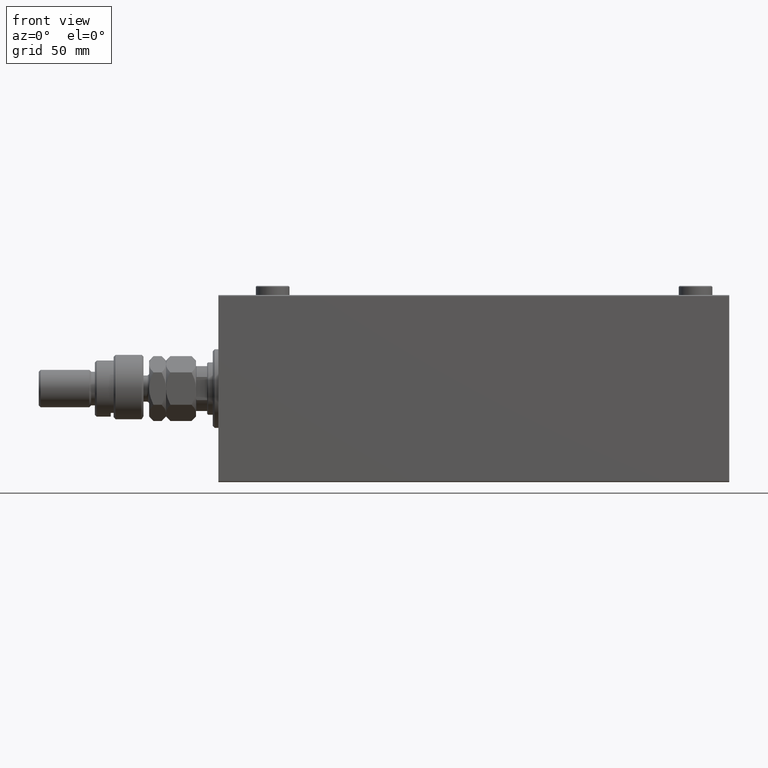
[diagram: clean part render]
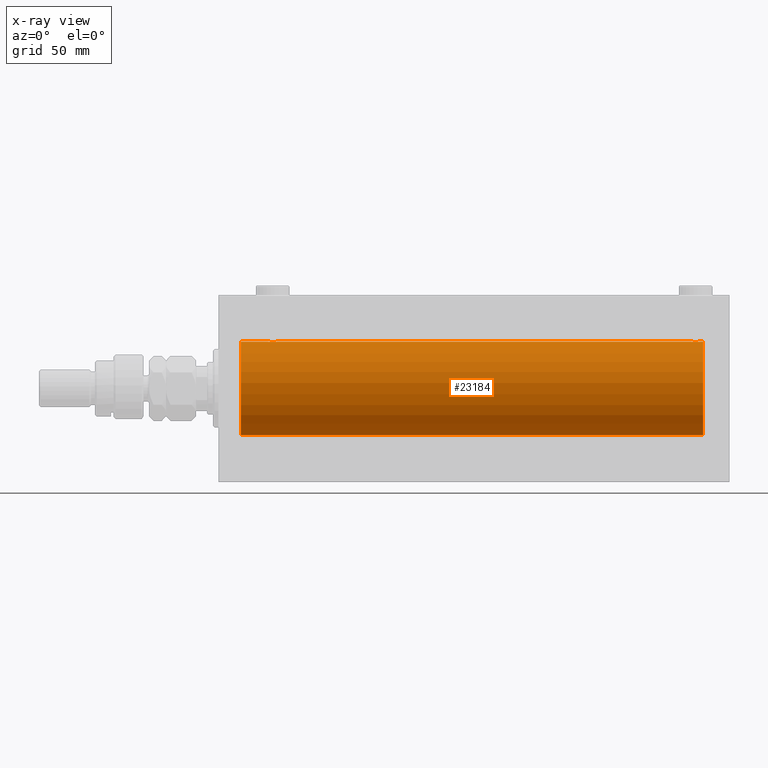
[diagram: x-ray — body ghosted, one internal face saturated and labeled with its STEP entity id]
A machine part, front view, then the same camera in x-ray: the body is ghosted and one INTERNAL B-rep face — a face not visible from any outside direction — is saturated and labeled: STEP entity #23184.
In plain terms, the highlighted cylindrical surface (partial cylindrical patch) has radius 25 mm, axis along (-1, -0, -0).
Its self-contained STEP definition (entity closure, byte-faithful):
#212 = CARTESIAN_POINT ( 'NONE',  ( 29.80435660916301899, -2.372734907014182326, 24.88722742718433878 ) ) ;
#597 = CARTESIAN_POINT ( 'NONE',  ( 252.7523974898045367, -1.106703319666894281, 24.97594585958023927 ) ) ;
#639 = CARTESIAN_POINT ( 'NONE',  ( 27.01461966282905180, -1.528152964861308138, -24.95362559291378801 ) ) ;
#1129 = CARTESIAN_POINT ( 'NONE',  ( 31.50000000000000000, 3.061616978460191625E-15, -25.00000000000000000 ) ) ;
#1507 = CARTESIAN_POINT ( 'NONE',  ( 259.0000000000000000, 3.061616997868383043E-15, -25.00000000000000000 ) ) ;
#1682 = CARTESIAN_POINT ( 'NONE',  ( 257.2476025101955202, -1.106703319666894947, -24.97594585958023217 ) ) ;
#1932 = CARTESIAN_POINT ( 'NONE',  ( 256.6538333614934118, -1.881857718844739624, -24.92933960374833902 ) ) ;
#2102 = CARTESIAN_POINT ( 'NONE',  ( 259.0000000000000000, 0.000000000000000000, 25.00000000000000000 ) ) ;
#2234 = VERTEX_POINT ( 'NONE', #37451 ) ;
#2618 = AXIS2_PLACEMENT_3D ( 'NONE', #45878, #12021, #26720 ) ;
#2656 = CARTESIAN_POINT ( 'NONE',  ( 257.3721596940860650, -0.8058335233485539595, -24.98746277938382931 ) ) ;
#2975 = VERTEX_POINT ( 'NONE', #33287 ) ;
#3764 = EDGE_LOOP ( 'NONE', ( #48429, #22702, #17120, #22298, #34511, #37191, #25600, #38653, #46615, #11689, #17526, #14984 ) ) ;
#3902 = CARTESIAN_POINT ( 'NONE',  ( 28.83293504821939379, -2.499872792855087233, 24.87469871246083031 ) ) ;
#4037 = CARTESIAN_POINT ( 'NONE',  ( 257.5000000000000000, -8.580739610308331755E-15, 25.00000000000000000 ) ) ;
#4142 = CARTESIAN_POINT ( 'NONE',  ( 30.10723845838409929, -2.247417070759904156, 24.89885693081946272 ) ) ;
#4530 = CARTESIAN_POINT ( 'NONE',  ( 255.3259657003945620, -2.484007091859792737, 24.87630842367763151 ) ) ;
#4768 = CARTESIAN_POINT ( 'NONE',  ( 253.0125018416559044, -1.525407911884380852, 24.95379469572361586 ) ) ;
#4815 = CARTESIAN_POINT ( 'NONE',  ( 27.11814045851354038, -1.653834020452936038, -24.94550385189584674 ) ) ;
#4858 = EDGE_CURVE ( 'NONE', #36177, #16082, #39893, .T. ) ;
#4878 = CARTESIAN_POINT ( 'NONE',  ( 26.82988709719075970, -1.252049606094340684, 24.96900299967627390 ) ) ;
#5594 = CARTESIAN_POINT ( 'NONE',  ( 31.24606379094066000, -1.109818057797429924, 24.97580694515541921 ) ) ;
#5747 = AXIS2_PLACEMENT_3D ( 'NONE', #38558, #41498, #41747 ) ;
#6103 = CARTESIAN_POINT ( 'NONE',  ( 254.3543933385136597, -2.420689345803805903, -24.88254961038872892 ) ) ;
#7593 = CARTESIAN_POINT ( 'NONE',  ( 27.88963203491135801, -2.245863995402904045, 24.89899750494197050 ) ) ;
#7722 = CARTESIAN_POINT ( 'NONE',  ( 252.6278403059139634, -0.8058335233485531823, 24.98746277938383287 ) ) ;
#8003 = CARTESIAN_POINT ( 'NONE',  ( 30.98749815834398902, -1.525407911884361312, -24.95379469572362652 ) ) ;
#8064 = CARTESIAN_POINT ( 'NONE',  ( 30.25084023924055288, -2.170728182476728385, 24.90574631553725027 ) ) ;
#8207 = CARTESIAN_POINT ( 'NONE',  ( 253.8896320349113296, -2.245863995402932023, 24.89899750494195985 ) ) ;
#8451 = CARTESIAN_POINT ( 'NONE',  ( 257.1682764149396689, -1.255214705003197428, 24.96884293994578741 ) ) ;
#8498 = CARTESIAN_POINT ( 'NONE',  ( 28.83676410361457343, -2.500125740978191846, -24.87467329022545925 ) ) ;
#8559 = CARTESIAN_POINT ( 'NONE',  ( 26.62784030591392437, -0.8058335233485482973, 24.98746277938383287 ) ) ;
#8688 = CARTESIAN_POINT ( 'NONE',  ( 253.1158761721352732, -1.651251241585103724, 24.94567559498348430 ) ) ;
#8734 = CARTESIAN_POINT ( 'NONE',  ( 26.56650644760252789, -0.6588655613945878509, -24.99312727339970763 ) ) ;
#8980 = CARTESIAN_POINT ( 'NONE',  ( 26.83172358506043054, -1.255214705003178555, -24.96884293994578030 ) ) ;
#8997 = VERTEX_POINT ( 'NONE', #10791 ) ;
#9378 = EDGE_CURVE ( 'NONE', #44978, #42387, #46279, .T. ) ;
#9537 = CARTESIAN_POINT ( 'NONE',  ( 253.4774322565982345, -1.989585286700310540, -24.92087098724766037 ) ) ;
#9771 = CARTESIAN_POINT ( 'NONE',  ( 31.50000000000000000, -1.314496572324655732E-14, 25.00000000000000000 ) ) ;
#9788 = CARTESIAN_POINT ( 'NONE',  ( 255.8078834240581330, -2.371528299825781616, -24.88734287464370354 ) ) ;
#10389 = CARTESIAN_POINT ( 'NONE',  ( 259.0000000000000000, 0.000000000000000000, 25.00000000000000000 ) ) ;
#10556 = CARTESIAN_POINT ( 'NONE',  ( 259.0000000000000000, 3.061616997868383043E-15, -25.00000000000000000 ) ) ;
#10791 = CARTESIAN_POINT ( 'NONE',  ( 12.00000000000001066, 3.061616997868383043E-15, -25.00000000000000000 ) ) ;
#11657 = CARTESIAN_POINT ( 'NONE',  ( 252.5798509077906147, -0.6480119923854320563, 24.99212088949391131 ) ) ;
#11689 = ORIENTED_EDGE ( 'NONE', *, *, #32211, .F. ) ;
#11793 = CARTESIAN_POINT ( 'NONE',  ( 259.0000000000000000, 3.061616997868383043E-15, -25.00000000000000000 ) ) ;
#11898 = CARTESIAN_POINT ( 'NONE',  ( 255.8043566091629941, -2.372734907014202754, 24.88722742718433167 ) ) ;
#12021 = DIRECTION ( 'NONE',  ( -1.000000000000000000, 0.000000000000000000, 0.000000000000000000 ) ) ;
#12155 = CARTESIAN_POINT ( 'NONE',  ( 256.2508402392406879, -2.170728182476761692, 24.90574631553725382 ) ) ;
#12390 = CARTESIAN_POINT ( 'NONE',  ( 255.1632358963855722, -2.500125740978224709, 24.87467329022545215 ) ) ;
#12520 = VECTOR ( 'NONE', #33124, 1000.000000000000000 ) ;
#12558 = EDGE_CURVE ( 'NONE', #2975, #46357, #36814, .T. ) ;
#12664 = CARTESIAN_POINT ( 'NONE',  ( 29.80788342405805835, -2.371528299825741648, -24.88734287464370709 ) ) ;
#12674 = DIRECTION ( 'NONE',  ( -1.000000000000000000, -0.000000000000000000, -0.000000000000000000 ) ) ;
#12749 = AXIS2_PLACEMENT_3D ( 'NONE', #34111, #31377, #13502 ) ;
#13232 = CARTESIAN_POINT ( 'NONE',  ( 252.5665064476024781, -0.6588655613946440281, -24.99312727339970053 ) ) ;
#13373 = VERTEX_POINT ( 'NONE', #1507 ) ;
#13502 = DIRECTION ( 'NONE',  ( 0.000000000000000000, 0.000000000000000000, 1.000000000000000000 ) ) ;
#13727 = CARTESIAN_POINT ( 'NONE',  ( 253.0146196628290056, -1.528152964861355434, -24.95362559291378801 ) ) ;
#13971 = CARTESIAN_POINT ( 'NONE',  ( 252.7539362090593329, -1.109818057797474555, -24.97580694515541921 ) ) ;
#14955 = DIRECTION ( 'NONE',  ( -1.000000000000000000, -0.000000000000000000, -0.000000000000000000 ) ) ;
#14984 = ORIENTED_EDGE ( 'NONE', *, *, #9378, .F. ) ;
#15203 = CARTESIAN_POINT ( 'NONE',  ( 26.57985090779070703, -0.6480119923854247288, 24.99212088949390420 ) ) ;
#15244 = VECTOR ( 'NONE', #26743, 1000.000000000000000 ) ;
#15622 = CARTESIAN_POINT ( 'NONE',  ( 31.17011290280925451, -1.252049606094333578, -24.96900299967627745 ) ) ;
#15682 = CARTESIAN_POINT ( 'NONE',  ( 29.16323589638541947, -2.500125740978201172, 24.87467329022545215 ) ) ;
#15823 = CARTESIAN_POINT ( 'NONE',  ( 254.8329350482194116, -2.499872792855111214, 24.87469871246082675 ) ) ;
#15872 = CARTESIAN_POINT ( 'NONE',  ( 31.48417840057656747, -0.3254210271412200650, -24.99840249400844527 ) ) ;
#16071 = CARTESIAN_POINT ( 'NONE',  ( 253.3461666385066167, -1.881857718844722971, 24.92933960374835323 ) ) ;
#16082 = VERTEX_POINT ( 'NONE', #17952 ) ;
#16115 = CARTESIAN_POINT ( 'NONE',  ( 26.50000000000000355, -4.113702575029848227E-15, -25.00000000000000000 ) ) ;
#16307 = CARTESIAN_POINT ( 'NONE',  ( 256.1072384583841881, -2.247417070759926361, 24.89885693081947693 ) ) ;
#16353 = CARTESIAN_POINT ( 'NONE',  ( 30.52536182243081342, -1.987446652080259391, -24.92104239223420592 ) ) ;
#16673 = CARTESIAN_POINT ( 'NONE',  ( 257.5000000000001137, -0.1631750940176236453, -25.00000000000001066 ) ) ;
#16913 = CARTESIAN_POINT ( 'NONE',  ( 256.1103679650888125, -2.245863995402927582, -24.89899750494196695 ) ) ;
#17120 = ORIENTED_EDGE ( 'NONE', *, *, #39598, .T. ) ;
#17377 = CARTESIAN_POINT ( 'NONE',  ( 31.49999999999994316, -0.3305063766663663971, 25.00000000000000000 ) ) ;
#17396 = CARTESIAN_POINT ( 'NONE',  ( 255.6490439016910159, -2.419770561643941775, -24.88263927071750814 ) ) ;
#17526 = ORIENTED_EDGE ( 'NONE', *, *, #36215, .T. ) ;
#17640 = CARTESIAN_POINT ( 'NONE',  ( 254.1956433908370059, -2.372734907014222738, -24.88722742718432812 ) ) ;
#17952 = CARTESIAN_POINT ( 'NONE',  ( 26.50000000000000355, -4.113702575029848227E-15, -25.00000000000000000 ) ) ;
#18175 = CARTESIAN_POINT ( 'NONE',  ( 259.0000000000000000, 0.000000000000000000, 25.00000000000000000 ) ) ;
#18869 = CARTESIAN_POINT ( 'NONE',  ( 29.64560666148631185, -2.420689345803767267, 24.88254961038873958 ) ) ;
#19007 = CARTESIAN_POINT ( 'NONE',  ( 257.2460637909408092, -1.109818057797441249, 24.97580694515542987 ) ) ;
#19049 = CARTESIAN_POINT ( 'NONE',  ( 30.11036796508864910, -2.245863995402895164, -24.89899750494197406 ) ) ;
#19112 = CARTESIAN_POINT ( 'NONE',  ( 30.52256774340189338, -1.989585286700254585, 24.92087098724766747 ) ) ;
#19158 = FACE_OUTER_BOUND ( 'NONE', #3764, .T. ) ;
#19395 = LINE ( 'NONE', #11793, #15244 ) ;
#19536 = CARTESIAN_POINT ( 'NONE',  ( 31.24760251019550950, -1.106703319666878071, -24.97594585958023572 ) ) ;
#19730 = CARTESIAN_POINT ( 'NONE',  ( 253.4746381775692043, -1.987446652080295584, 24.92104239223420947 ) ) ;
#19779 = CARTESIAN_POINT ( 'NONE',  ( 27.89276154161591137, -2.247417070759893498, -24.89885693081945917 ) ) ;
#19879 = LINE ( 'NONE', #27239, #40450 ) ;
#19976 = CARTESIAN_POINT ( 'NONE',  ( 256.5225677434018507, -1.989585286700291000, 24.92087098724765681 ) ) ;
#20580 = CARTESIAN_POINT ( 'NONE',  ( 257.4841784005766954, -0.3254210271412252831, -24.99840249400845238 ) ) ;
#20695 = VECTOR ( 'NONE', #12674, 1000.000000000000000 ) ;
#20828 = CARTESIAN_POINT ( 'NONE',  ( 257.1701129028092510, -1.252049606094359779, -24.96900299967627035 ) ) ;
#21068 = CARTESIAN_POINT ( 'NONE',  ( 253.8927615416158972, -2.247417070759944568, -24.89885693081944851 ) ) ;
#21543 = CARTESIAN_POINT ( 'NONE',  ( 31.50000000000000000, 3.061616978460191625E-15, -25.00000000000000000 ) ) ;
#22261 = LINE ( 'NONE', #37219, #26260 ) ;
#22298 = ORIENTED_EDGE ( 'NONE', *, *, #28037, .T. ) ;
#22560 = CARTESIAN_POINT ( 'NONE',  ( 28.35095609830903385, -2.419770561643914686, 24.88263927071751169 ) ) ;
#22691 = CARTESIAN_POINT ( 'NONE',  ( 253.7461680457550699, -2.169003991399901299, 24.90589728951138682 ) ) ;
#22702 = ORIENTED_EDGE ( 'NONE', *, *, #25120, .T. ) ;
#23042 = CARTESIAN_POINT ( 'NONE',  ( 30.98538033717094464, -1.528152964861319685, 24.95362559291378801 ) ) ;
#23183 = CARTESIAN_POINT ( 'NONE',  ( 254.3509560983090978, -2.419770561643938223, 24.88263927071750814 ) ) ;
#23184 = ADVANCED_FACE ( 'NONE', ( #19158 ), #41482, .F. ) ;
#23230 = CARTESIAN_POINT ( 'NONE',  ( 28.35439333851368460, -2.420689345803756165, -24.88254961038873958 ) ) ;
#23468 = CARTESIAN_POINT ( 'NONE',  ( 30.65383336149337978, -1.881857718844712091, -24.92933960374833546 ) ) ;
#23528 = CARTESIAN_POINT ( 'NONE',  ( 26.75239748980449050, -1.106703319666885843, 24.97594585958023572 ) ) ;
#23784 = CIRCLE ( 'NONE', #2618, 25.00000000000000000 ) ;
#24514 = CARTESIAN_POINT ( 'NONE',  ( 252.4999999999999432, -0.3305063766664071978, -24.99999999999999645 ) ) ;
#24762 = CARTESIAN_POINT ( 'NONE',  ( 256.2538319542450154, -2.169003991399887976, -24.90589728951137971 ) ) ;
#24870 = EDGE_CURVE ( 'NONE', #8997, #46357, #26902, .T. ) ;
#25120 = EDGE_CURVE ( 'NONE', #13373, #35300, #44168, .T. ) ;
#25189 = EDGE_CURVE ( 'NONE', #2975, #47916, #25723, .T. ) ;
#25529 = CARTESIAN_POINT ( 'NONE',  ( 252.5000000000000000, -1.941583902975215306E-23, 25.00000000000000000 ) ) ;
#25600 = ORIENTED_EDGE ( 'NONE', *, *, #24870, .T. ) ;
#25723 = B_SPLINE_CURVE_WITH_KNOTS ( 'NONE', 3,
 ( #37766, #46101, #42179, #15203, #8559, #23528, #4878, #34310, #26237, #41203, #45377, #26705, #7593, #41683, #22560, #37525, #3902, #15682, #45139, #18869, #212, #4142, #8064, #19112, #30625, #34070, #23042, #38010, #5594, #39213, #17377, #9771 ),
 .UNSPECIFIED., .F., .F.,
 ( 4, 2, 2, 2, 2, 2, 2, 2, 2, 2, 2, 2, 2, 2, 2, 4 ),
 ( 0.007821024441662192267, 0.008309723826317793466, 0.008798423210973392930, 0.009287122595628994129, 0.009775821980284593593, 0.01026452136494019479, 0.01075322074959579599, 0.01124192013425139719, 0.01173061951890699665, 0.01221931890356259612, 0.01270801828821819732, 0.01319671767287379852, 0.01368541705752939971, 0.01417411644218499918, 0.01466281582684060038, 0.01564021459615180104 ),
 .UNSPECIFIED. ) ;
#26237 = CARTESIAN_POINT ( 'NONE',  ( 27.11587617213528389, -1.651251241585103502, 24.94567559498349141 ) ) ;
#26260 = VECTOR ( 'NONE', #40419, 1000.000000000000000 ) ;
#26607 = CARTESIAN_POINT ( 'NONE',  ( 256.6512113355911424, -1.884161199660639108, 24.92916496727981723 ) ) ;
#26705 = CARTESIAN_POINT ( 'NONE',  ( 27.74616804575496687, -2.169003991399872433, 24.90589728951138326 ) ) ;
#26720 = DIRECTION ( 'NONE',  ( 0.000000000000000000, 0.000000000000000000, 1.000000000000000000 ) ) ;
#26743 = DIRECTION ( 'NONE',  ( -1.000000000000000000, -0.000000000000000000, -0.000000000000000000 ) ) ;
#26898 = CARTESIAN_POINT ( 'NONE',  ( 27.34878866440888245, -1.884161199660614017, -24.92916496727982434 ) ) ;
#26902 = CIRCLE ( 'NONE', #5747, 25.00000000000000000 ) ;
#27145 = CARTESIAN_POINT ( 'NONE',  ( 26.75393620905933290, -1.109818057797416158, -24.97580694515542277 ) ) ;
#27239 = CARTESIAN_POINT ( 'NONE',  ( 259.0000000000000000, 0.000000000000000000, 25.00000000000000000 ) ) ;
#27330 = CARTESIAN_POINT ( 'NONE',  ( 252.5000000000000000, -1.941583902975215306E-23, 25.00000000000000000 ) ) ;
#27564 = CARTESIAN_POINT ( 'NONE',  ( 254.1921165759419239, -2.371528299825780728, 24.88734287464370709 ) ) ;
#27613 = CARTESIAN_POINT ( 'NONE',  ( 31.50000000000000000, -0.1631750940176180942, -25.00000000000001066 ) ) ;
#28037 = EDGE_CURVE ( 'NONE', #2234, #36177, #19395, .T. ) ;
#28174 = CARTESIAN_POINT ( 'NONE',  ( 254.8367641036144562, -2.500125740978243805, -24.87467329022544504 ) ) ;
#28422 = CARTESIAN_POINT ( 'NONE',  ( 256.8841238278648120, -1.651251241585120377, -24.94567559498348430 ) ) ;
#30327 = CARTESIAN_POINT ( 'NONE',  ( 31.42014909220930363, -0.6480119923854200659, -24.99212088949392196 ) ) ;
#30521 = CARTESIAN_POINT ( 'NONE',  ( 252.8298870971907775, -1.252049606094348455, 24.96900299967627035 ) ) ;
#30563 = CARTESIAN_POINT ( 'NONE',  ( 26.50000000000000000, -0.3305063766663763336, -25.00000000000000355 ) ) ;
#30625 = CARTESIAN_POINT ( 'NONE',  ( 30.65121133559111755, -1.884161199660627117, 24.92916496727982434 ) ) ;
#30769 = CARTESIAN_POINT ( 'NONE',  ( 256.8818595414866195, -1.653834020452956244, 24.94550385189585739 ) ) ;
#30810 = CARTESIAN_POINT ( 'NONE',  ( 29.32947680114268252, -2.483544361357266084, -24.87635491893501083 ) ) ;
#31283 = CARTESIAN_POINT ( 'NONE',  ( 29.64904390169096970, -2.419770561643905804, -24.88263927071751169 ) ) ;
#31377 = DIRECTION ( 'NONE',  ( -1.000000000000000000, -0.000000000000000000, -0.000000000000000000 ) ) ;
#31606 = CARTESIAN_POINT ( 'NONE',  ( 252.8317235850603879, -1.255214705003223408, -24.96884293994578030 ) ) ;
#31853 = CARTESIAN_POINT ( 'NONE',  ( 255.3294768011427038, -2.483544361357311825, -24.87635491893501083 ) ) ;
#32211 = EDGE_CURVE ( 'NONE', #47092, #47916, #19879, .T. ) ;
#32341 = CARTESIAN_POINT ( 'NONE',  ( 255.1670649517807590, -2.499872792855129422, -24.87469871246082320 ) ) ;
#32589 = CARTESIAN_POINT ( 'NONE',  ( 257.4201490922092717, -0.6480119923854290587, -24.99212088949389354 ) ) ;
#33124 = DIRECTION ( 'NONE',  ( -1.000000000000000000, -0.000000000000000000, -0.000000000000000000 ) ) ;
#33287 = CARTESIAN_POINT ( 'NONE',  ( 26.50000000000000355, -1.940597826843689041E-23, 25.00000000000000000 ) ) ;
#34006 = CARTESIAN_POINT ( 'NONE',  ( 27.47743225659810307, -1.989585286700244149, -24.92087098724765681 ) ) ;
#34070 = CARTESIAN_POINT ( 'NONE',  ( 30.88185954148645251, -1.653834020452949360, 24.94550385189585029 ) ) ;
#34111 = CARTESIAN_POINT ( 'NONE',  ( 259.0000000000000000, 0.000000000000000000, 0.000000000000000000 ) ) ;
#34249 = CARTESIAN_POINT ( 'NONE',  ( 28.19564339083698457, -2.372734907014171224, -24.88722742718433523 ) ) ;
#34310 = CARTESIAN_POINT ( 'NONE',  ( 27.01250184165601453, -1.525407911884368639, 24.95379469572361941 ) ) ;
#34485 = CARTESIAN_POINT ( 'NONE',  ( 27.74915976075945068, -2.170728182476717283, -24.90574631553725027 ) ) ;
#34511 = ORIENTED_EDGE ( 'NONE', *, *, #4858, .T. ) ;
#35300 = VERTEX_POINT ( 'NONE', #36916 ) ;
#35542 = CARTESIAN_POINT ( 'NONE',  ( 256.5253618224309662, -1.987446652080274268, -24.92104239223420947 ) ) ;
#35788 = CARTESIAN_POINT ( 'NONE',  ( 252.5000000000000000, -4.337149129868305233E-14, -25.00000000000000000 ) ) ;
#36177 = VERTEX_POINT ( 'NONE', #21543 ) ;
#36202 = CARTESIAN_POINT ( 'NONE',  ( 12.00000000000001066, 0.000000000000000000, 25.00000000000000000 ) ) ;
#36215 = EDGE_CURVE ( 'NONE', #47092, #42387, #36849, .T. ) ;
#36275 = CARTESIAN_POINT ( 'NONE',  ( 257.5000000000000000, 3.061616978452697446E-15, -25.00000000000000000 ) ) ;
#36814 = LINE ( 'NONE', #18175, #12520 ) ;
#36849 = B_SPLINE_CURVE_WITH_KNOTS ( 'NONE', 3,
 ( #27330, #38393, #46223, #11657, #7722, #597, #30521, #4768, #8688, #16071, #19730, #22691, #8207, #27564, #23183, #45276, #15823, #12390, #4530, #45507, #11898, #16307, #12155, #19976, #26607, #30769, #38149, #8451, #19007, #45997, #42308, #4037 ),
 .UNSPECIFIED., .F., .F.,
 ( 4, 2, 2, 2, 2, 2, 2, 2, 2, 2, 2, 2, 2, 2, 2, 4 ),
 ( 0.007821024441662291146, 0.008309723826317894080, 0.008798423210973498748, 0.009287122595629101682, 0.009775821980284704615, 0.01026452136494030755, 0.01075322074959591048, 0.01124192013425151342, 0.01173061951890711635, 0.01221931890356271755, 0.01270801828821832048, 0.01319671767287392342, 0.01368541705752952635, 0.01417411644218512928, 0.01466281582684073222, 0.01564021459615200227 ),
 .UNSPECIFIED. ) ;
#36916 = CARTESIAN_POINT ( 'NONE',  ( 257.5000000000000000, 3.061616978452697446E-15, -25.00000000000000000 ) ) ;
#37191 = ORIENTED_EDGE ( 'NONE', *, *, #45635, .T. ) ;
#37219 = CARTESIAN_POINT ( 'NONE',  ( 259.0000000000000000, 3.061616997868383043E-15, -25.00000000000000000 ) ) ;
#37451 = CARTESIAN_POINT ( 'NONE',  ( 252.5000000000000000, -4.337149129868305233E-14, -25.00000000000000000 ) ) ;
#37525 = CARTESIAN_POINT ( 'NONE',  ( 28.67052319885731038, -2.483544361357276742, 24.87635491893501793 ) ) ;
#37766 = CARTESIAN_POINT ( 'NONE',  ( 26.50000000000000355, -1.940597826843689041E-23, 25.00000000000000000 ) ) ;
#37800 = DIRECTION ( 'NONE',  ( -1.000000000000000000, -0.000000000000000000, -0.000000000000000000 ) ) ;
#38010 = CARTESIAN_POINT ( 'NONE',  ( 31.16827641493957657, -1.255214705003189879, 24.96884293994578385 ) ) ;
#38149 = CARTESIAN_POINT ( 'NONE',  ( 256.9853803371710796, -1.528152964861330343, 24.95362559291379156 ) ) ;
#38196 = CARTESIAN_POINT ( 'NONE',  ( 30.88412382786470900, -1.651251241585097063, -24.94567559498348075 ) ) ;
#38393 = CARTESIAN_POINT ( 'NONE',  ( 252.4999999999999432, -0.1631750940176271980, 25.00000000000001066 ) ) ;
#38435 = CARTESIAN_POINT ( 'NONE',  ( 29.16706495178060621, -2.499872792855077464, -24.87469871246082320 ) ) ;
#38558 = CARTESIAN_POINT ( 'NONE',  ( 12.00000000000001066, 0.000000000000000000, 0.000000000000000000 ) ) ;
#38653 = ORIENTED_EDGE ( 'NONE', *, *, #12558, .F. ) ;
#39213 = CARTESIAN_POINT ( 'NONE',  ( 31.43349355239747567, -0.6588655613946025058, 24.99312727339970053 ) ) ;
#39598 = EDGE_CURVE ( 'NONE', #35300, #2234, #48474, .T. ) ;
#39893 = B_SPLINE_CURVE_WITH_KNOTS ( 'NONE', 3,
 ( #1129, #27613, #15872, #30327, #45804, #19536, #15622, #8003, #38196, #23468, #16353, #42589, #19049, #12664, #31283, #30810, #38435, #8498, #46271, #23230, #34249, #19779, #34485, #34006, #26898, #4815, #639, #8980, #27145, #8734, #30563, #16115 ),
 .UNSPECIFIED., .F., .F.,
 ( 4, 2, 2, 2, 2, 2, 2, 2, 2, 2, 2, 2, 2, 2, 2, 4 ),
 ( 0.007821024441662299820, 0.008309723826317907958, 0.008798423210973517830, 0.009287122595629122498, 0.009775821980284727167, 0.01026452136494033184, 0.01075322074959593650, 0.01124192013425154291, 0.01173061951890714757, 0.01221931890356275051, 0.01270801828821835691, 0.01319671767287396158, 0.01368541705752956625, 0.01417411644218517092, 0.01466281582684077732, 0.01564021459615199186 ),
 .UNSPECIFIED. ) ;
#40419 = DIRECTION ( 'NONE',  ( -1.000000000000000000, -0.000000000000000000, -0.000000000000000000 ) ) ;
#40450 = VECTOR ( 'NONE', #37800, 1000.000000000000000 ) ;
#40730 = CARTESIAN_POINT ( 'NONE',  ( 31.50000000000000000, -1.314496572324655732E-14, 25.00000000000000000 ) ) ;
#41203 = CARTESIAN_POINT ( 'NONE',  ( 27.34616663850662377, -1.881857718844718974, 24.92933960374833902 ) ) ;
#41482 = CYLINDRICAL_SURFACE ( 'NONE', #12749, 25.00000000000000000 ) ;
#41498 = DIRECTION ( 'NONE',  ( -1.000000000000000000, 0.000000000000000000, 0.000000000000000000 ) ) ;
#41683 = CARTESIAN_POINT ( 'NONE',  ( 28.19211657594193809, -2.371528299825752750, 24.88734287464370709 ) ) ;
#41747 = DIRECTION ( 'NONE',  ( 0.000000000000000000, 0.000000000000000000, 1.000000000000000000 ) ) ;
#42179 = CARTESIAN_POINT ( 'NONE',  ( 26.51582159942343608, -0.3254210271412243949, 24.99840249400844883 ) ) ;
#42308 = CARTESIAN_POINT ( 'NONE',  ( 257.5000000000000568, -0.3305063766663751124, 25.00000000000000711 ) ) ;
#42387 = VERTEX_POINT ( 'NONE', #45152 ) ;
#42446 = EDGE_CURVE ( 'NONE', #13373, #44978, #23784, .T. ) ;
#42589 = CARTESIAN_POINT ( 'NONE',  ( 30.25383195424502958, -2.169003991399867104, -24.90589728951138326 ) ) ;
#43150 = CARTESIAN_POINT ( 'NONE',  ( 256.9874981583440672, -1.525407911884391288, -24.95379469572361586 ) ) ;
#43891 = CARTESIAN_POINT ( 'NONE',  ( 253.7491597607595111, -2.170728182476780788, -24.90574631553725027 ) ) ;
#44168 = LINE ( 'NONE', #10556, #47329 ) ;
#44978 = VERTEX_POINT ( 'NONE', #10389 ) ;
#45139 = CARTESIAN_POINT ( 'NONE',  ( 29.32596570039459749, -2.484007091859770977, 24.87630842367763506 ) ) ;
#45152 = CARTESIAN_POINT ( 'NONE',  ( 257.5000000000000000, -8.580739610308331755E-15, 25.00000000000000000 ) ) ;
#45276 = CARTESIAN_POINT ( 'NONE',  ( 254.6705231988572393, -2.483544361357300279, 24.87635491893501793 ) ) ;
#45377 = CARTESIAN_POINT ( 'NONE',  ( 27.47463817756918658, -1.987446652080263831, 24.92104239223420592 ) ) ;
#45507 = CARTESIAN_POINT ( 'NONE',  ( 255.6456066614864540, -2.420689345803786363, 24.88254961038874313 ) ) ;
#45635 = EDGE_CURVE ( 'NONE', #16082, #8997, #22261, .T. ) ;
#45804 = CARTESIAN_POINT ( 'NONE',  ( 31.37215969408607563, -0.8058335233485418581, -24.98746277938382931 ) ) ;
#45878 = CARTESIAN_POINT ( 'NONE',  ( 259.0000000000000000, 0.000000000000000000, 0.000000000000000000 ) ) ;
#45997 = CARTESIAN_POINT ( 'NONE',  ( 257.4334935523975787, -0.6588655613946091671, 24.99312727339970408 ) ) ;
#46101 = CARTESIAN_POINT ( 'NONE',  ( 26.50000000000000711, -0.1631750940176215914, 25.00000000000000711 ) ) ;
#46223 = CARTESIAN_POINT ( 'NONE',  ( 252.5158215994234183, -0.3254210271412281696, 24.99840249400844883 ) ) ;
#46271 = CARTESIAN_POINT ( 'NONE',  ( 28.67403429960540606, -2.484007091859761207, -24.87630842367763506 ) ) ;
#46279 = LINE ( 'NONE', #2102, #20695 ) ;
#46357 = VERTEX_POINT ( 'NONE', #36202 ) ;
#46615 = ORIENTED_EDGE ( 'NONE', *, *, #25189, .T. ) ;
#46839 = CARTESIAN_POINT ( 'NONE',  ( 254.6740342996052675, -2.484007091859810501, -24.87630842367762440 ) ) ;
#47092 = VERTEX_POINT ( 'NONE', #25529 ) ;
#47329 = VECTOR ( 'NONE', #14955, 1000.000000000000000 ) ;
#47332 = CARTESIAN_POINT ( 'NONE',  ( 253.3487886644088576, -1.884161199660660646, -24.92916496727982079 ) ) ;
#47574 = CARTESIAN_POINT ( 'NONE',  ( 253.1181404585135510, -1.653834020452977782, -24.94550385189584674 ) ) ;
#47916 = VERTEX_POINT ( 'NONE', #40730 ) ;
#48429 = ORIENTED_EDGE ( 'NONE', *, *, #42446, .F. ) ;
#48474 = B_SPLINE_CURVE_WITH_KNOTS ( 'NONE', 3,
 ( #36275, #16673, #20580, #32589, #2656, #1682, #20828, #43150, #28422, #1932, #35542, #24762, #16913, #9788, #17396, #31853, #32341, #28174, #46839, #6103, #17640, #21068, #43891, #9537, #47332, #47574, #13727, #31606, #13971, #13232, #24514, #35788 ),
 .UNSPECIFIED., .F., .F.,
 ( 4, 2, 2, 2, 2, 2, 2, 2, 2, 2, 2, 2, 2, 2, 2, 4 ),
 ( 0.007821024441662358800, 0.008309723826317966938, 0.008798423210973573341, 0.009287122595629181479, 0.009775821980284789617, 0.01026452136494039775, 0.01075322074959600589, 0.01124192013425161403, 0.01173061951890722217, 0.01221931890356283031, 0.01270801828821843844, 0.01319671767287404658, 0.01368541705752965472, 0.01417411644218526286, 0.01466281582684087273, 0.01564021459615215145 ),
 .UNSPECIFIED. ) ;